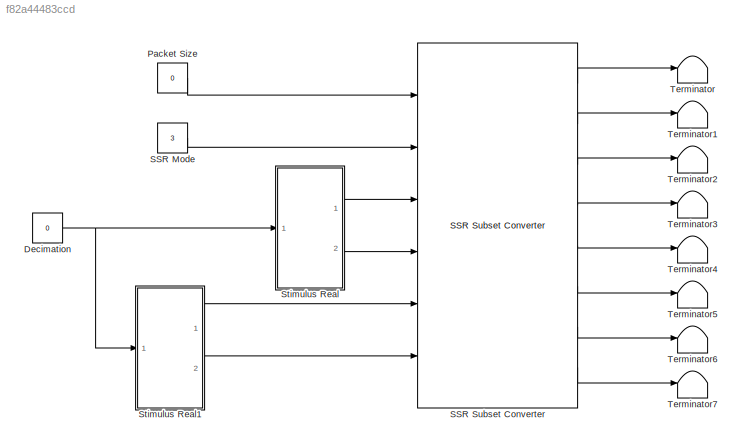
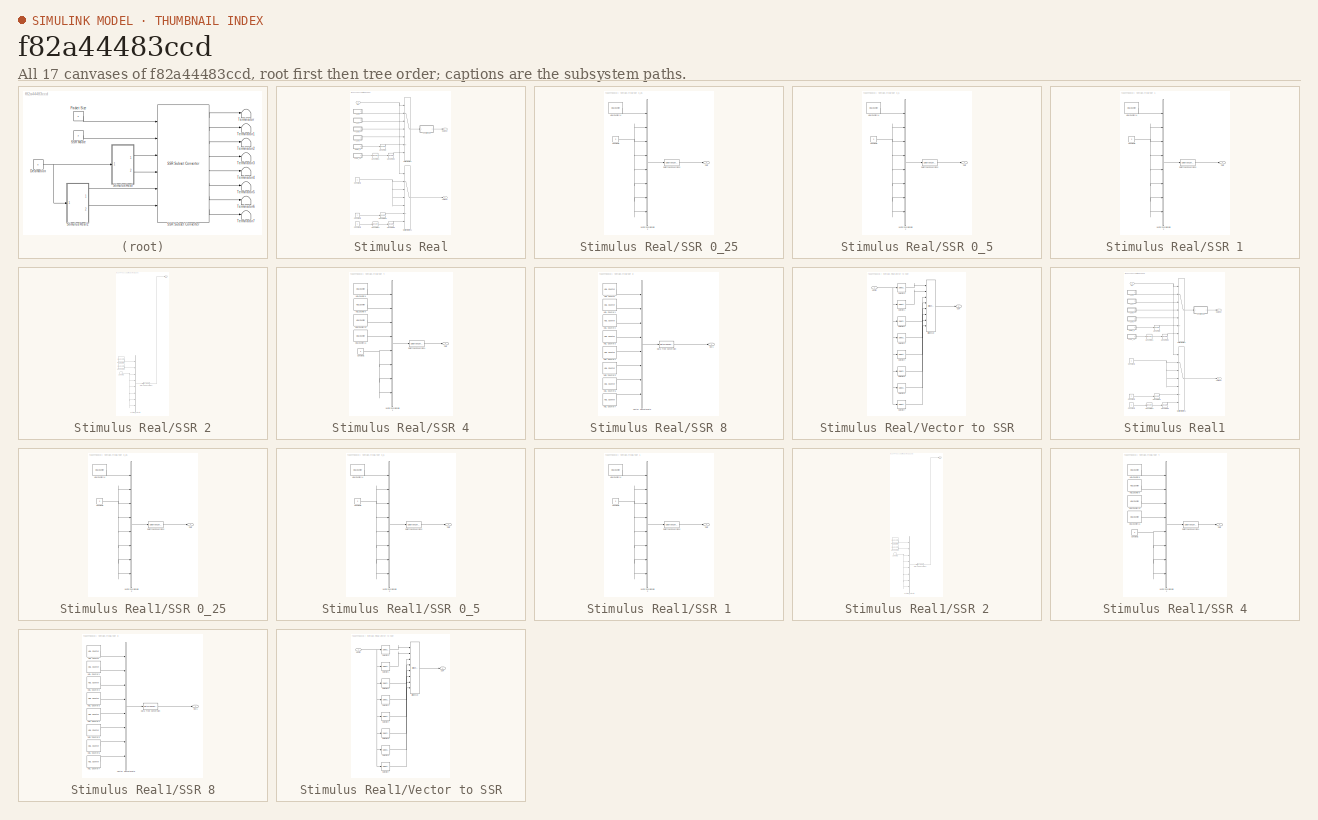
[diagram: thumbnail index - all 17 canvases of the model, root first then tree order]
MODEL slx_f82a44483ccd
KIND model
CONFIG AbsTol = auto
CONFIG EnableMultiTasking = off
CONFIG FixedStep = auto
CONFIG InitFcn = fs = 256e6;
CONFIG MaxStep = auto
CONFIG MinStep = auto
CONFIG RelTol = 1e-3
CONFIG SampleTimeConstraint = Unconstrained
CONFIG Solver = VariableStepAuto
CONFIG SolverName = VariableStepAuto
CONFIG StartTime = 0.0
CONFIG StopTime = (8192*4)/256e6
BLOCK [Constant] Decimation
  OutDataTypeStr = uint32
  SampleTime = -1
  Value = 0
BLOCK [Constant] Packet Size
  OutDataTypeStr = uint32
  SampleTime = -1
  Value = 0
BLOCK [Constant] SSR Mode
  OutDataTypeStr = uint32
  SampleTime = -1
  Value = 3
BLOCK [Reference] SSR Subset Converter  REF=slib_spectrum_analyser/SSR Subset Converter  (lib defined in slx_9446f48c21c4, slx_d429541b2c0d)
  Ports = [6, 8]
  SourceBlock = slib_spectrum_analyser/SSR Subset Converter
  SourceType = SubSystem
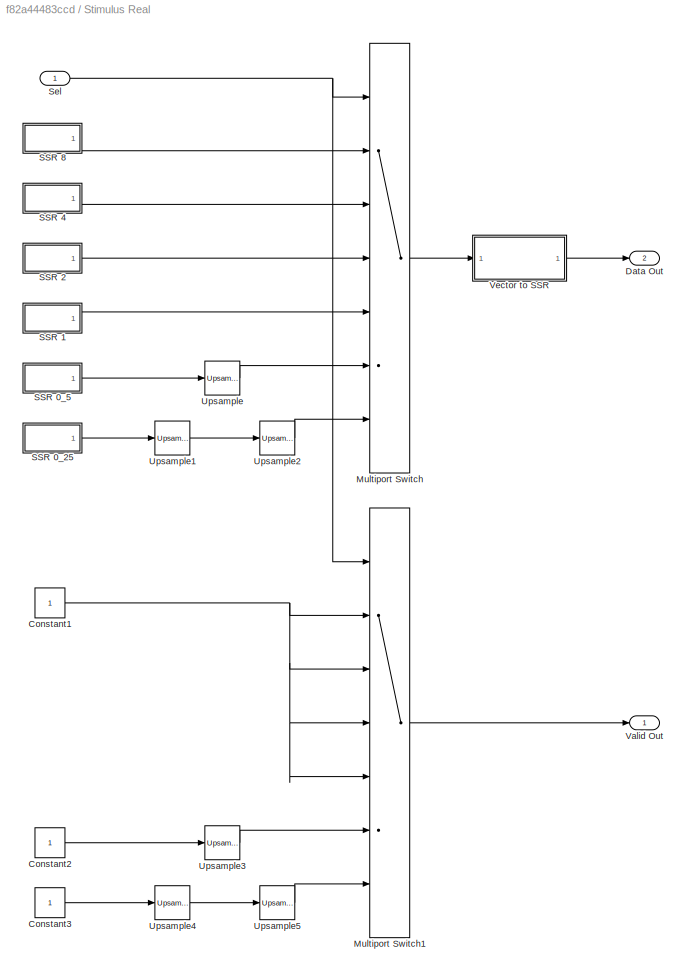
BLOCK [SubSystem] Stimulus Real
  Ports = [1, 2]
  RequestExecContextInheritance = off
BLOCK [Constant] Stimulus Real/Constant1
  OutDataTypeStr = boolean
  SampleTime = 1/fs
BLOCK [Constant] Stimulus Real/Constant2
  OutDataTypeStr = boolean
  SampleTime = 1/(fs/2)
BLOCK [Constant] Stimulus Real/Constant3
  OutDataTypeStr = boolean
  SampleTime = 1/(fs/4)
BLOCK [Outport] Stimulus Real/Data Out
  Port = 2
BLOCK [MultiPortSwitch] Stimulus Real/Multiport Switch
  DataPortOrder = Zero-based contiguous
  InputSameDT = off
  Inputs = 6
  Ports = [7, 1]
  SaturateOnIntegerOverflow = off
  zeroidx = on
BLOCK [MultiPortSwitch] Stimulus Real/Multiport Switch1
  DataPortOrder = Zero-based contiguous
  InputSameDT = off
  Inputs = 6
  Ports = [7, 1]
  SaturateOnIntegerOverflow = off
  zeroidx = on
BLOCK [SubSystem] Stimulus Real/SSR 0_25
  Ports = [0, 1]
  RequestExecContextInheritance = off
BLOCK [Constant] Stimulus Real/SSR 0_25/Constant2
  OutDataTypeStr = fixdt(0,12,0)
  SampleTime = -1
  Value = 0
BLOCK [DataTypeConversion] Stimulus Real/SSR 0_25/Data Type Conversion2
  OutDataTypeStr = fixdt(0,16,0)
  RndMeth = Floor
  SaturateOnIntegerOverflow = off
BLOCK [Reference] Stimulus Real/SSR 0_25/HDL Counter14  REF=hdlsllib/Sources/HDL Counter
  Ports = [0, 1]
  SourceBlock = hdlsllib/Sources/HDL Counter
  SourceProductBaseCode = SL
  SourceType = HDL Counter
BLOCK [Outport] Stimulus Real/SSR 0_25/Out1
BLOCK [Concatenate] Stimulus Real/SSR 0_25/Vector Concatenate2
  NumInputs = 8
  Ports = [8, 1]
BLOCK [SubSystem] Stimulus Real/SSR 0_5
  Ports = [0, 1]
  RequestExecContextInheritance = off
BLOCK [Constant] Stimulus Real/SSR 0_5/Constant2
  OutDataTypeStr = fixdt(0,12,0)
  SampleTime = -1
  Value = 0
BLOCK [DataTypeConversion] Stimulus Real/SSR 0_5/Data Type Conversion2
  OutDataTypeStr = fixdt(0,16,0)
  RndMeth = Floor
  SaturateOnIntegerOverflow = off
BLOCK [Reference] Stimulus Real/SSR 0_5/HDL Counter14  REF=hdlsllib/Sources/HDL Counter
  Ports = [0, 1]
  SourceBlock = hdlsllib/Sources/HDL Counter
  SourceProductBaseCode = SL
  SourceType = HDL Counter
BLOCK [Outport] Stimulus Real/SSR 0_5/Out1
BLOCK [Concatenate] Stimulus Real/SSR 0_5/Vector Concatenate2
  NumInputs = 8
  Ports = [8, 1]
BLOCK [SubSystem] Stimulus Real/SSR 1
  Ports = [0, 1]
  RequestExecContextInheritance = off
BLOCK [Constant] Stimulus Real/SSR 1/Constant2
  OutDataTypeStr = fixdt(0,12,0)
  SampleTime = -1
  Value = 0
BLOCK [DataTypeConversion] Stimulus Real/SSR 1/Data Type Conversion2
  OutDataTypeStr = fixdt(0,16,0)
  RndMeth = Floor
  SaturateOnIntegerOverflow = off
BLOCK [Reference] Stimulus Real/SSR 1/HDL Counter14  REF=hdlsllib/Sources/HDL Counter
  Ports = [0, 1]
  SourceBlock = hdlsllib/Sources/HDL Counter
  SourceProductBaseCode = SL
  SourceType = HDL Counter
BLOCK [Outport] Stimulus Real/SSR 1/Out1
BLOCK [Concatenate] Stimulus Real/SSR 1/Vector Concatenate2
  NumInputs = 8
  Ports = [8, 1]
BLOCK [SubSystem] Stimulus Real/SSR 2
  Ports = [0, 1]
  RequestExecContextInheritance = off
BLOCK [Constant] Stimulus Real/SSR 2/Constant2
  OutDataTypeStr = fixdt(0,12,0)
  SampleTime = -1
  Value = 0
BLOCK [DataTypeConversion] Stimulus Real/SSR 2/Data Type Conversion2
  OutDataTypeStr = fixdt(0,16,0)
  RndMeth = Floor
  SaturateOnIntegerOverflow = off
BLOCK [Reference] Stimulus Real/SSR 2/HDL Counter14  REF=hdlsllib/Sources/HDL Counter
  Ports = [0, 1]
  SourceBlock = hdlsllib/Sources/HDL Counter
  SourceProductBaseCode = SL
  SourceType = HDL Counter
BLOCK [Reference] Stimulus Real/SSR 2/HDL Counter15  REF=hdlsllib/Sources/HDL Counter
  Ports = [0, 1]
  SourceBlock = hdlsllib/Sources/HDL Counter
  SourceProductBaseCode = SL
  SourceType = HDL Counter
BLOCK [Outport] Stimulus Real/SSR 2/Out1
BLOCK [Concatenate] Stimulus Real/SSR 2/Vector Concatenate2
  NumInputs = 8
  Ports = [8, 1]
BLOCK [SubSystem] Stimulus Real/SSR 4
  Ports = [0, 1]
  RequestExecContextInheritance = off
BLOCK [Constant] Stimulus Real/SSR 4/Constant1
  OutDataTypeStr = fixdt(0,12,0)
  SampleTime = -1
  Value = 0
BLOCK [DataTypeConversion] Stimulus Real/SSR 4/Data Type Conversion1
  OutDataTypeStr = fixdt(0,16,0)
  RndMeth = Floor
  SaturateOnIntegerOverflow = off
BLOCK [Reference] Stimulus Real/SSR 4/HDL Counter10  REF=hdlsllib/Sources/HDL Counter
  Ports = [0, 1]
  SourceBlock = hdlsllib/Sources/HDL Counter
  SourceProductBaseCode = SL
  SourceType = HDL Counter
BLOCK [Reference] Stimulus Real/SSR 4/HDL Counter11  REF=hdlsllib/Sources/HDL Counter
  Ports = [0, 1]
  SourceBlock = hdlsllib/Sources/HDL Counter
  SourceProductBaseCode = SL
  SourceType = HDL Counter
BLOCK [Reference] Stimulus Real/SSR 4/HDL Counter8  REF=hdlsllib/Sources/HDL Counter
  Ports = [0, 1]
  SourceBlock = hdlsllib/Sources/HDL Counter
  SourceProductBaseCode = SL
  SourceType = HDL Counter
BLOCK [Reference] Stimulus Real/SSR 4/HDL Counter9  REF=hdlsllib/Sources/HDL Counter
  Ports = [0, 1]
  SourceBlock = hdlsllib/Sources/HDL Counter
  SourceProductBaseCode = SL
  SourceType = HDL Counter
BLOCK [Outport] Stimulus Real/SSR 4/Out1
BLOCK [Concatenate] Stimulus Real/SSR 4/Vector Concatenate1
  NumInputs = 8
  Ports = [8, 1]
BLOCK [SubSystem] Stimulus Real/SSR 8
  Ports = [0, 1]
  RequestExecContextInheritance = off
BLOCK [DataTypeConversion] Stimulus Real/SSR 8/Data Type Conversion
  OutDataTypeStr = fixdt(0,16,0)
  RndMeth = Floor
  SaturateOnIntegerOverflow = off
BLOCK [Reference] Stimulus Real/SSR 8/HDL Counter  REF=hdlsllib/Sources/HDL Counter
  Ports = [0, 1]
  SourceBlock = hdlsllib/Sources/HDL Counter
  SourceProductBaseCode = SL
  SourceType = HDL Counter
BLOCK [Reference] Stimulus Real/SSR 8/HDL Counter1  REF=hdlsllib/Sources/HDL Counter
  Ports = [0, 1]
  SourceBlock = hdlsllib/Sources/HDL Counter
  SourceProductBaseCode = SL
  SourceType = HDL Counter
BLOCK [Reference] Stimulus Real/SSR 8/HDL Counter2  REF=hdlsllib/Sources/HDL Counter
  Ports = [0, 1]
  SourceBlock = hdlsllib/Sources/HDL Counter
  SourceProductBaseCode = SL
  SourceType = HDL Counter
BLOCK [Reference] Stimulus Real/SSR 8/HDL Counter3  REF=hdlsllib/Sources/HDL Counter
  Ports = [0, 1]
  SourceBlock = hdlsllib/Sources/HDL Counter
  SourceProductBaseCode = SL
  SourceType = HDL Counter
BLOCK [Reference] Stimulus Real/SSR 8/HDL Counter4  REF=hdlsllib/Sources/HDL Counter
  Ports = [0, 1]
  SourceBlock = hdlsllib/Sources/HDL Counter
  SourceProductBaseCode = SL
  SourceType = HDL Counter
BLOCK [Reference] Stimulus Real/SSR 8/HDL Counter5  REF=hdlsllib/Sources/HDL Counter
  Ports = [0, 1]
  SourceBlock = hdlsllib/Sources/HDL Counter
  SourceProductBaseCode = SL
  SourceType = HDL Counter
BLOCK [Reference] Stimulus Real/SSR 8/HDL Counter6  REF=hdlsllib/Sources/HDL Counter
  Ports = [0, 1]
  SourceBlock = hdlsllib/Sources/HDL Counter
  SourceProductBaseCode = SL
  SourceType = HDL Counter
BLOCK [Reference] Stimulus Real/SSR 8/HDL Counter7  REF=hdlsllib/Sources/HDL Counter
  Ports = [0, 1]
  SourceBlock = hdlsllib/Sources/HDL Counter
  SourceProductBaseCode = SL
  SourceType = HDL Counter
BLOCK [Outport] Stimulus Real/SSR 8/Out1
BLOCK [Concatenate] Stimulus Real/SSR 8/Vector Concatenate
  NumInputs = 8
  Ports = [8, 1]
BLOCK [Inport] Stimulus Real/Sel
BLOCK [Reference] Stimulus Real/Upsample  REF=dspsigops/Upsample
  Ports = [1, 1]
  SourceBlock = dspsigops/Upsample
  SourceProductBaseCode = DS
  SourceType = Upsample
  UserDataPersistent = on
BLOCK [Reference] Stimulus Real/Upsample1  REF=dspsigops/Upsample
  Ports = [1, 1]
  SourceBlock = dspsigops/Upsample
  SourceProductBaseCode = DS
  SourceType = Upsample
  UserDataPersistent = on
BLOCK [Reference] Stimulus Real/Upsample2  REF=dspsigops/Upsample
  Ports = [1, 1]
  SourceBlock = dspsigops/Upsample
  SourceProductBaseCode = DS
  SourceType = Upsample
  UserDataPersistent = on
BLOCK [Reference] Stimulus Real/Upsample3  REF=dspsigops/Upsample
  Ports = [1, 1]
  SourceBlock = dspsigops/Upsample
  SourceProductBaseCode = DS
  SourceType = Upsample
  UserDataPersistent = on
BLOCK [Reference] Stimulus Real/Upsample4  REF=dspsigops/Upsample
  Ports = [1, 1]
  SourceBlock = dspsigops/Upsample
  SourceProductBaseCode = DS
  SourceType = Upsample
  UserDataPersistent = on
BLOCK [Reference] Stimulus Real/Upsample5  REF=dspsigops/Upsample
  Ports = [1, 1]
  SourceBlock = dspsigops/Upsample
  SourceProductBaseCode = DS
  SourceType = Upsample
  UserDataPersistent = on
BLOCK [Outport] Stimulus Real/Valid Out
BLOCK [SubSystem] Stimulus Real/Vector to SSR
  Ports = [1, 1]
  RequestExecContextInheritance = off
BLOCK [Reference] Stimulus Real/Vector to SSR/Bit Concat  REF=hdlsllib/Logic and Bit
Operations/Bit Concat
  Ports = [8, 1]
  SourceBlock = hdlsllib/Logic and Bit\nOperations/Bit Concat
  SourceProductBaseCode = SL
  SourceType = Bit Concat
BLOCK [Outport] Stimulus Real/Vector to SSR/SSR
BLOCK [Selector] Stimulus Real/Vector to SSR/Selector0
  IndexOptions = Index vector (dialog)
  Indices = 8
  InputPortWidth = 8
  OutputSizes = 1
  Ports = [1, 1]
BLOCK [Selector] Stimulus Real/Vector to SSR/Selector1
  IndexOptions = Index vector (dialog)
  Indices = 7
  InputPortWidth = 8
  OutputSizes = 1
  Ports = [1, 1]
BLOCK [Selector] Stimulus Real/Vector to SSR/Selector2
  IndexOptions = Index vector (dialog)
  Indices = 6
  InputPortWidth = 8
  OutputSizes = 1
  Ports = [1, 1]
BLOCK [Selector] Stimulus Real/Vector to SSR/Selector3
  IndexOptions = Index vector (dialog)
  Indices = 5
  InputPortWidth = 8
  OutputSizes = 1
  Ports = [1, 1]
BLOCK [Selector] Stimulus Real/Vector to SSR/Selector4
  IndexOptions = Index vector (dialog)
  Indices = 4
  InputPortWidth = 8
  OutputSizes = 1
  Ports = [1, 1]
BLOCK [Selector] Stimulus Real/Vector to SSR/Selector5
  IndexOptions = Index vector (dialog)
  Indices = 3
  InputPortWidth = 8
  OutputSizes = 1
  Ports = [1, 1]
BLOCK [Selector] Stimulus Real/Vector to SSR/Selector6
  IndexOptions = Index vector (dialog)
  Indices = 2
  InputPortWidth = 8
  OutputSizes = 1
  Ports = [1, 1]
BLOCK [Selector] Stimulus Real/Vector to SSR/Selector7
  IndexOptions = Index vector (dialog)
  Indices = 1
  InputPortWidth = 8
  OutputSizes = 1
  Ports = [1, 1]
BLOCK [Inport] Stimulus Real/Vector to SSR/Vector
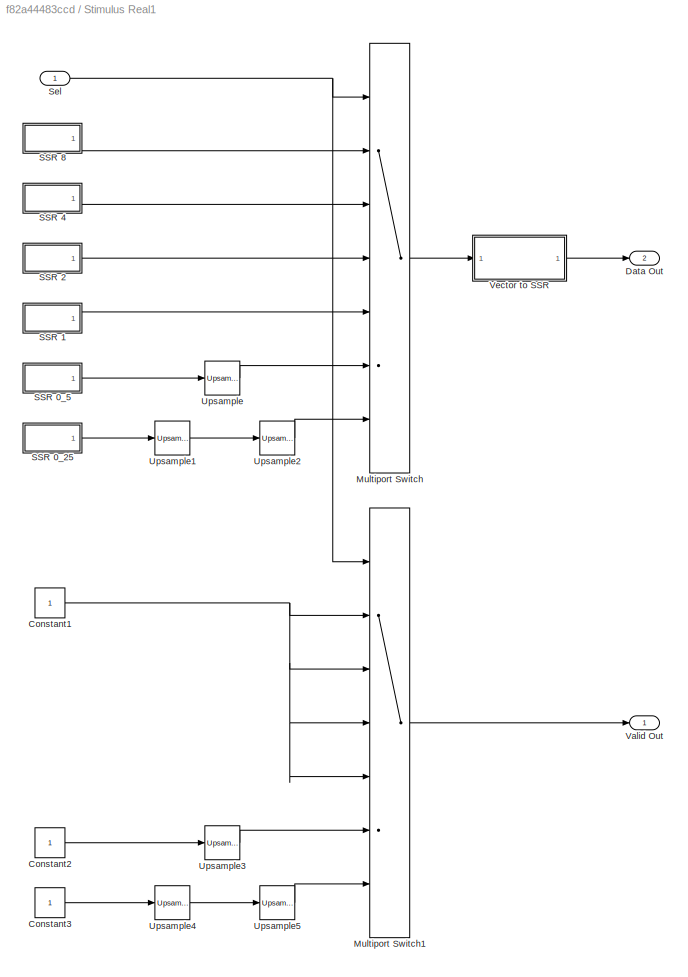
BLOCK [SubSystem] Stimulus Real1
  Ports = [1, 2]
  RequestExecContextInheritance = off
BLOCK [Constant] Stimulus Real1/Constant1
  OutDataTypeStr = boolean
  SampleTime = 1/fs
BLOCK [Constant] Stimulus Real1/Constant2
  OutDataTypeStr = boolean
  SampleTime = 1/(fs/2)
BLOCK [Constant] Stimulus Real1/Constant3
  OutDataTypeStr = boolean
  SampleTime = 1/(fs/4)
BLOCK [Outport] Stimulus Real1/Data Out
  Port = 2
BLOCK [MultiPortSwitch] Stimulus Real1/Multiport Switch
  DataPortOrder = Zero-based contiguous
  InputSameDT = off
  Inputs = 6
  Ports = [7, 1]
  SaturateOnIntegerOverflow = off
  zeroidx = on
BLOCK [MultiPortSwitch] Stimulus Real1/Multiport Switch1
  DataPortOrder = Zero-based contiguous
  InputSameDT = off
  Inputs = 6
  Ports = [7, 1]
  SaturateOnIntegerOverflow = off
  zeroidx = on
BLOCK [SubSystem] Stimulus Real1/SSR 0_25
  Ports = [0, 1]
  RequestExecContextInheritance = off
BLOCK [Constant] Stimulus Real1/SSR 0_25/Constant2
  OutDataTypeStr = fixdt(0,12,0)
  SampleTime = -1
  Value = 0
BLOCK [DataTypeConversion] Stimulus Real1/SSR 0_25/Data Type Conversion2
  OutDataTypeStr = fixdt(0,16,0)
  RndMeth = Floor
  SaturateOnIntegerOverflow = off
BLOCK [Reference] Stimulus Real1/SSR 0_25/HDL Counter14  REF=hdlsllib/Sources/HDL Counter
  Ports = [0, 1]
  SourceBlock = hdlsllib/Sources/HDL Counter
  SourceProductBaseCode = SL
  SourceType = HDL Counter
BLOCK [Outport] Stimulus Real1/SSR 0_25/Out1
BLOCK [Concatenate] Stimulus Real1/SSR 0_25/Vector Concatenate2
  NumInputs = 8
  Ports = [8, 1]
BLOCK [SubSystem] Stimulus Real1/SSR 0_5
  Ports = [0, 1]
  RequestExecContextInheritance = off
BLOCK [Constant] Stimulus Real1/SSR 0_5/Constant2
  OutDataTypeStr = fixdt(0,12,0)
  SampleTime = -1
  Value = 0
BLOCK [DataTypeConversion] Stimulus Real1/SSR 0_5/Data Type Conversion2
  OutDataTypeStr = fixdt(0,16,0)
  RndMeth = Floor
  SaturateOnIntegerOverflow = off
BLOCK [Reference] Stimulus Real1/SSR 0_5/HDL Counter14  REF=hdlsllib/Sources/HDL Counter
  Ports = [0, 1]
  SourceBlock = hdlsllib/Sources/HDL Counter
  SourceProductBaseCode = SL
  SourceType = HDL Counter
BLOCK [Outport] Stimulus Real1/SSR 0_5/Out1
BLOCK [Concatenate] Stimulus Real1/SSR 0_5/Vector Concatenate2
  NumInputs = 8
  Ports = [8, 1]
BLOCK [SubSystem] Stimulus Real1/SSR 1
  Ports = [0, 1]
  RequestExecContextInheritance = off
BLOCK [Constant] Stimulus Real1/SSR 1/Constant2
  OutDataTypeStr = fixdt(0,12,0)
  SampleTime = -1
  Value = 0
BLOCK [DataTypeConversion] Stimulus Real1/SSR 1/Data Type Conversion2
  OutDataTypeStr = fixdt(0,16,0)
  RndMeth = Floor
  SaturateOnIntegerOverflow = off
BLOCK [Reference] Stimulus Real1/SSR 1/HDL Counter14  REF=hdlsllib/Sources/HDL Counter
  Ports = [0, 1]
  SourceBlock = hdlsllib/Sources/HDL Counter
  SourceProductBaseCode = SL
  SourceType = HDL Counter
BLOCK [Outport] Stimulus Real1/SSR 1/Out1
BLOCK [Concatenate] Stimulus Real1/SSR 1/Vector Concatenate2
  NumInputs = 8
  Ports = [8, 1]
BLOCK [SubSystem] Stimulus Real1/SSR 2
  Ports = [0, 1]
  RequestExecContextInheritance = off
BLOCK [Constant] Stimulus Real1/SSR 2/Constant2
  OutDataTypeStr = fixdt(0,12,0)
  SampleTime = -1
  Value = 0
BLOCK [DataTypeConversion] Stimulus Real1/SSR 2/Data Type Conversion2
  OutDataTypeStr = fixdt(0,16,0)
  RndMeth = Floor
  SaturateOnIntegerOverflow = off
BLOCK [Reference] Stimulus Real1/SSR 2/HDL Counter14  REF=hdlsllib/Sources/HDL Counter
  Ports = [0, 1]
  SourceBlock = hdlsllib/Sources/HDL Counter
  SourceProductBaseCode = SL
  SourceType = HDL Counter
BLOCK [Reference] Stimulus Real1/SSR 2/HDL Counter15  REF=hdlsllib/Sources/HDL Counter
  Ports = [0, 1]
  SourceBlock = hdlsllib/Sources/HDL Counter
  SourceProductBaseCode = SL
  SourceType = HDL Counter
BLOCK [Outport] Stimulus Real1/SSR 2/Out1
BLOCK [Concatenate] Stimulus Real1/SSR 2/Vector Concatenate2
  NumInputs = 8
  Ports = [8, 1]
BLOCK [SubSystem] Stimulus Real1/SSR 4
  Ports = [0, 1]
  RequestExecContextInheritance = off
BLOCK [Constant] Stimulus Real1/SSR 4/Constant1
  OutDataTypeStr = fixdt(0,12,0)
  SampleTime = -1
  Value = 0
BLOCK [DataTypeConversion] Stimulus Real1/SSR 4/Data Type Conversion1
  OutDataTypeStr = fixdt(0,16,0)
  RndMeth = Floor
  SaturateOnIntegerOverflow = off
BLOCK [Reference] Stimulus Real1/SSR 4/HDL Counter10  REF=hdlsllib/Sources/HDL Counter
  Ports = [0, 1]
  SourceBlock = hdlsllib/Sources/HDL Counter
  SourceProductBaseCode = SL
  SourceType = HDL Counter
BLOCK [Reference] Stimulus Real1/SSR 4/HDL Counter11  REF=hdlsllib/Sources/HDL Counter
  Ports = [0, 1]
  SourceBlock = hdlsllib/Sources/HDL Counter
  SourceProductBaseCode = SL
  SourceType = HDL Counter
BLOCK [Reference] Stimulus Real1/SSR 4/HDL Counter8  REF=hdlsllib/Sources/HDL Counter
  Ports = [0, 1]
  SourceBlock = hdlsllib/Sources/HDL Counter
  SourceProductBaseCode = SL
  SourceType = HDL Counter
BLOCK [Reference] Stimulus Real1/SSR 4/HDL Counter9  REF=hdlsllib/Sources/HDL Counter
  Ports = [0, 1]
  SourceBlock = hdlsllib/Sources/HDL Counter
  SourceProductBaseCode = SL
  SourceType = HDL Counter
BLOCK [Outport] Stimulus Real1/SSR 4/Out1
BLOCK [Concatenate] Stimulus Real1/SSR 4/Vector Concatenate1
  NumInputs = 8
  Ports = [8, 1]
BLOCK [SubSystem] Stimulus Real1/SSR 8
  Ports = [0, 1]
  RequestExecContextInheritance = off
BLOCK [DataTypeConversion] Stimulus Real1/SSR 8/Data Type Conversion
  OutDataTypeStr = fixdt(0,16,0)
  RndMeth = Floor
  SaturateOnIntegerOverflow = off
BLOCK [Reference] Stimulus Real1/SSR 8/HDL Counter  REF=hdlsllib/Sources/HDL Counter
  Ports = [0, 1]
  SourceBlock = hdlsllib/Sources/HDL Counter
  SourceProductBaseCode = SL
  SourceType = HDL Counter
BLOCK [Reference] Stimulus Real1/SSR 8/HDL Counter1  REF=hdlsllib/Sources/HDL Counter
  Ports = [0, 1]
  SourceBlock = hdlsllib/Sources/HDL Counter
  SourceProductBaseCode = SL
  SourceType = HDL Counter
BLOCK [Reference] Stimulus Real1/SSR 8/HDL Counter2  REF=hdlsllib/Sources/HDL Counter
  Ports = [0, 1]
  SourceBlock = hdlsllib/Sources/HDL Counter
  SourceProductBaseCode = SL
  SourceType = HDL Counter
BLOCK [Reference] Stimulus Real1/SSR 8/HDL Counter3  REF=hdlsllib/Sources/HDL Counter
  Ports = [0, 1]
  SourceBlock = hdlsllib/Sources/HDL Counter
  SourceProductBaseCode = SL
  SourceType = HDL Counter
BLOCK [Reference] Stimulus Real1/SSR 8/HDL Counter4  REF=hdlsllib/Sources/HDL Counter
  Ports = [0, 1]
  SourceBlock = hdlsllib/Sources/HDL Counter
  SourceProductBaseCode = SL
  SourceType = HDL Counter
BLOCK [Reference] Stimulus Real1/SSR 8/HDL Counter5  REF=hdlsllib/Sources/HDL Counter
  Ports = [0, 1]
  SourceBlock = hdlsllib/Sources/HDL Counter
  SourceProductBaseCode = SL
  SourceType = HDL Counter
BLOCK [Reference] Stimulus Real1/SSR 8/HDL Counter6  REF=hdlsllib/Sources/HDL Counter
  Ports = [0, 1]
  SourceBlock = hdlsllib/Sources/HDL Counter
  SourceProductBaseCode = SL
  SourceType = HDL Counter
BLOCK [Reference] Stimulus Real1/SSR 8/HDL Counter7  REF=hdlsllib/Sources/HDL Counter
  Ports = [0, 1]
  SourceBlock = hdlsllib/Sources/HDL Counter
  SourceProductBaseCode = SL
  SourceType = HDL Counter
BLOCK [Outport] Stimulus Real1/SSR 8/Out1
BLOCK [Concatenate] Stimulus Real1/SSR 8/Vector Concatenate
  NumInputs = 8
  Ports = [8, 1]
BLOCK [Inport] Stimulus Real1/Sel
BLOCK [Reference] Stimulus Real1/Upsample  REF=dspsigops/Upsample
  Ports = [1, 1]
  SourceBlock = dspsigops/Upsample
  SourceProductBaseCode = DS
  SourceType = Upsample
  UserDataPersistent = on
BLOCK [Reference] Stimulus Real1/Upsample1  REF=dspsigops/Upsample
  Ports = [1, 1]
  SourceBlock = dspsigops/Upsample
  SourceProductBaseCode = DS
  SourceType = Upsample
  UserDataPersistent = on
BLOCK [Reference] Stimulus Real1/Upsample2  REF=dspsigops/Upsample
  Ports = [1, 1]
  SourceBlock = dspsigops/Upsample
  SourceProductBaseCode = DS
  SourceType = Upsample
  UserDataPersistent = on
BLOCK [Reference] Stimulus Real1/Upsample3  REF=dspsigops/Upsample
  Ports = [1, 1]
  SourceBlock = dspsigops/Upsample
  SourceProductBaseCode = DS
  SourceType = Upsample
  UserDataPersistent = on
BLOCK [Reference] Stimulus Real1/Upsample4  REF=dspsigops/Upsample
  Ports = [1, 1]
  SourceBlock = dspsigops/Upsample
  SourceProductBaseCode = DS
  SourceType = Upsample
  UserDataPersistent = on
BLOCK [Reference] Stimulus Real1/Upsample5  REF=dspsigops/Upsample
  Ports = [1, 1]
  SourceBlock = dspsigops/Upsample
  SourceProductBaseCode = DS
  SourceType = Upsample
  UserDataPersistent = on
BLOCK [Outport] Stimulus Real1/Valid Out
BLOCK [SubSystem] Stimulus Real1/Vector to SSR
  Ports = [1, 1]
  RequestExecContextInheritance = off
BLOCK [Reference] Stimulus Real1/Vector to SSR/Bit Concat  REF=hdlsllib/Logic and Bit
Operations/Bit Concat
  Ports = [8, 1]
  SourceBlock = hdlsllib/Logic and Bit\nOperations/Bit Concat
  SourceProductBaseCode = SL
  SourceType = Bit Concat
BLOCK [Outport] Stimulus Real1/Vector to SSR/SSR
BLOCK [Selector] Stimulus Real1/Vector to SSR/Selector0
  IndexOptions = Index vector (dialog)
  Indices = 8
  InputPortWidth = 8
  OutputSizes = 1
  Ports = [1, 1]
BLOCK [Selector] Stimulus Real1/Vector to SSR/Selector1
  IndexOptions = Index vector (dialog)
  Indices = 7
  InputPortWidth = 8
  OutputSizes = 1
  Ports = [1, 1]
BLOCK [Selector] Stimulus Real1/Vector to SSR/Selector2
  IndexOptions = Index vector (dialog)
  Indices = 6
  InputPortWidth = 8
  OutputSizes = 1
  Ports = [1, 1]
BLOCK [Selector] Stimulus Real1/Vector to SSR/Selector3
  IndexOptions = Index vector (dialog)
  Indices = 5
  InputPortWidth = 8
  OutputSizes = 1
  Ports = [1, 1]
BLOCK [Selector] Stimulus Real1/Vector to SSR/Selector4
  IndexOptions = Index vector (dialog)
  Indices = 4
  InputPortWidth = 8
  OutputSizes = 1
  Ports = [1, 1]
BLOCK [Selector] Stimulus Real1/Vector to SSR/Selector5
  IndexOptions = Index vector (dialog)
  Indices = 3
  InputPortWidth = 8
  OutputSizes = 1
  Ports = [1, 1]
BLOCK [Selector] Stimulus Real1/Vector to SSR/Selector6
  IndexOptions = Index vector (dialog)
  Indices = 2
  InputPortWidth = 8
  OutputSizes = 1
  Ports = [1, 1]
BLOCK [Selector] Stimulus Real1/Vector to SSR/Selector7
  IndexOptions = Index vector (dialog)
  Indices = 1
  InputPortWidth = 8
  OutputSizes = 1
  Ports = [1, 1]
BLOCK [Inport] Stimulus Real1/Vector to SSR/Vector
BLOCK [Terminator] Terminator
BLOCK [Terminator] Terminator1
BLOCK [Terminator] Terminator2
BLOCK [Terminator] Terminator3
BLOCK [Terminator] Terminator4
BLOCK [Terminator] Terminator5
BLOCK [Terminator] Terminator6
BLOCK [Terminator] Terminator7
NET Decimation:1 -> Stimulus Real1:1, Stimulus Real:1
LINE Packet Size:1 -> SSR Subset Converter:1
LINE SSR Mode:1 -> SSR Subset Converter:2
LINE SSR Subset Converter:1 -> Terminator:1
LINE SSR Subset Converter:2 -> Terminator1:1
LINE SSR Subset Converter:3 -> Terminator2:1
LINE SSR Subset Converter:4 -> Terminator3:1
LINE SSR Subset Converter:5 -> Terminator4:1
LINE SSR Subset Converter:6 -> Terminator5:1
LINE SSR Subset Converter:7 -> Terminator6:1
LINE SSR Subset Converter:8 -> Terminator7:1
NET Stimulus Real/Constant1:1 -> Stimulus Real/Multiport Switch1:2, Stimulus Real/Multiport Switch1:3, Stimulus Real/Multiport Switch1:4, Stimulus Real/Multiport Switch1:5
LINE Stimulus Real/Constant2:1 -> Stimulus Real/Upsample3:1
LINE Stimulus Real/Constant3:1 -> Stimulus Real/Upsample4:1
LINE Stimulus Real/Multiport Switch1:1 -> Stimulus Real/Valid Out:1
LINE Stimulus Real/Multiport Switch:1 -> Stimulus Real/Vector to SSR:1
NET Stimulus Real/SSR 0_25/Constant2:1 -> Stimulus Real/SSR 0_25/Vector Concatenate2:2, Stimulus Real/SSR 0_25/Vector Concatenate2:3, Stimulus Real/SSR 0_25/Vector Concatenate2:4, Stimulus Real/SSR 0_25/Vector Concatenate2:5, Stimulus Real/SSR 0_25/Vector Concatenate2:6, Stimulus Real/SSR 0_25/Vector Concatenate2:7, Stimulus Real/SSR 0_25/Vector Concatenate2:8
LINE Stimulus Real/SSR 0_25/Data Type Conversion2:1 -> Stimulus Real/SSR 0_25/Out1:1
LINE Stimulus Real/SSR 0_25/HDL Counter14:1 -> Stimulus Real/SSR 0_25/Vector Concatenate2:1
LINE Stimulus Real/SSR 0_25/Vector Concatenate2:1 -> Stimulus Real/SSR 0_25/Data Type Conversion2:1
LINE Stimulus Real/SSR 0_25:1 -> Stimulus Real/Upsample1:1
NET Stimulus Real/SSR 0_5/Constant2:1 -> Stimulus Real/SSR 0_5/Vector Concatenate2:2, Stimulus Real/SSR 0_5/Vector Concatenate2:3, Stimulus Real/SSR 0_5/Vector Concatenate2:4, Stimulus Real/SSR 0_5/Vector Concatenate2:5, Stimulus Real/SSR 0_5/Vector Concatenate2:6, Stimulus Real/SSR 0_5/Vector Concatenate2:7, Stimulus Real/SSR 0_5/Vector Concatenate2:8
LINE Stimulus Real/SSR 0_5/Data Type Conversion2:1 -> Stimulus Real/SSR 0_5/Out1:1
LINE Stimulus Real/SSR 0_5/HDL Counter14:1 -> Stimulus Real/SSR 0_5/Vector Concatenate2:1
LINE Stimulus Real/SSR 0_5/Vector Concatenate2:1 -> Stimulus Real/SSR 0_5/Data Type Conversion2:1
LINE Stimulus Real/SSR 0_5:1 -> Stimulus Real/Upsample:1
NET Stimulus Real/SSR 1/Constant2:1 -> Stimulus Real/SSR 1/Vector Concatenate2:2, Stimulus Real/SSR 1/Vector Concatenate2:3, Stimulus Real/SSR 1/Vector Concatenate2:4, Stimulus Real/SSR 1/Vector Concatenate2:5, Stimulus Real/SSR 1/Vector Concatenate2:6, Stimulus Real/SSR 1/Vector Concatenate2:7, Stimulus Real/SSR 1/Vector Concatenate2:8
LINE Stimulus Real/SSR 1/Data Type Conversion2:1 -> Stimulus Real/SSR 1/Out1:1
LINE Stimulus Real/SSR 1/HDL Counter14:1 -> Stimulus Real/SSR 1/Vector Concatenate2:1
LINE Stimulus Real/SSR 1/Vector Concatenate2:1 -> Stimulus Real/SSR 1/Data Type Conversion2:1
LINE Stimulus Real/SSR 1:1 -> Stimulus Real/Multiport Switch:5
NET Stimulus Real/SSR 2/Constant2:1 -> Stimulus Real/SSR 2/Vector Concatenate2:3, Stimulus Real/SSR 2/Vector Concatenate2:4, Stimulus Real/SSR 2/Vector Concatenate2:5, Stimulus Real/SSR 2/Vector Concatenate2:6, Stimulus Real/SSR 2/Vector Concatenate2:7, Stimulus Real/SSR 2/Vector Concatenate2:8
LINE Stimulus Real/SSR 2/Data Type Conversion2:1 -> Stimulus Real/SSR 2/Out1:1
LINE Stimulus Real/SSR 2/HDL Counter14:1 -> Stimulus Real/SSR 2/Vector Concatenate2:1
LINE Stimulus Real/SSR 2/HDL Counter15:1 -> Stimulus Real/SSR 2/Vector Concatenate2:2
LINE Stimulus Real/SSR 2/Vector Concatenate2:1 -> Stimulus Real/SSR 2/Data Type Conversion2:1
LINE Stimulus Real/SSR 2:1 -> Stimulus Real/Multiport Switch:4
NET Stimulus Real/SSR 4/Constant1:1 -> Stimulus Real/SSR 4/Vector Concatenate1:5, Stimulus Real/SSR 4/Vector Concatenate1:6, Stimulus Real/SSR 4/Vector Concatenate1:7, Stimulus Real/SSR 4/Vector Concatenate1:8
LINE Stimulus Real/SSR 4/Data Type Conversion1:1 -> Stimulus Real/SSR 4/Out1:1
LINE Stimulus Real/SSR 4/HDL Counter10:1 -> Stimulus Real/SSR 4/Vector Concatenate1:3
LINE Stimulus Real/SSR 4/HDL Counter11:1 -> Stimulus Real/SSR 4/Vector Concatenate1:4
LINE Stimulus Real/SSR 4/HDL Counter8:1 -> Stimulus Real/SSR 4/Vector Concatenate1:1
LINE Stimulus Real/SSR 4/HDL Counter9:1 -> Stimulus Real/SSR 4/Vector Concatenate1:2
LINE Stimulus Real/SSR 4/Vector Concatenate1:1 -> Stimulus Real/SSR 4/Data Type Conversion1:1
LINE Stimulus Real/SSR 4:1 -> Stimulus Real/Multiport Switch:3
LINE Stimulus Real/SSR 8/Data Type Conversion:1 -> Stimulus Real/SSR 8/Out1:1
LINE Stimulus Real/SSR 8/HDL Counter1:1 -> Stimulus Real/SSR 8/Vector Concatenate:2
LINE Stimulus Real/SSR 8/HDL Counter2:1 -> Stimulus Real/SSR 8/Vector Concatenate:3
LINE Stimulus Real/SSR 8/HDL Counter3:1 -> Stimulus Real/SSR 8/Vector Concatenate:4
LINE Stimulus Real/SSR 8/HDL Counter4:1 -> Stimulus Real/SSR 8/Vector Concatenate:5
LINE Stimulus Real/SSR 8/HDL Counter5:1 -> Stimulus Real/SSR 8/Vector Concatenate:6
LINE Stimulus Real/SSR 8/HDL Counter6:1 -> Stimulus Real/SSR 8/Vector Concatenate:7
LINE Stimulus Real/SSR 8/HDL Counter7:1 -> Stimulus Real/SSR 8/Vector Concatenate:8
LINE Stimulus Real/SSR 8/HDL Counter:1 -> Stimulus Real/SSR 8/Vector Concatenate:1
LINE Stimulus Real/SSR 8/Vector Concatenate:1 -> Stimulus Real/SSR 8/Data Type Conversion:1
LINE Stimulus Real/SSR 8:1 -> Stimulus Real/Multiport Switch:2
NET Stimulus Real/Sel:1 -> Stimulus Real/Multiport Switch1:1, Stimulus Real/Multiport Switch:1
LINE Stimulus Real/Upsample1:1 -> Stimulus Real/Upsample2:1
LINE Stimulus Real/Upsample2:1 -> Stimulus Real/Multiport Switch:7
LINE Stimulus Real/Upsample3:1 -> Stimulus Real/Multiport Switch1:6
LINE Stimulus Real/Upsample4:1 -> Stimulus Real/Upsample5:1
LINE Stimulus Real/Upsample5:1 -> Stimulus Real/Multiport Switch1:7
LINE Stimulus Real/Upsample:1 -> Stimulus Real/Multiport Switch:6
LINE Stimulus Real/Vector to SSR/Bit Concat:1 -> Stimulus Real/Vector to SSR/SSR:1
LINE Stimulus Real/Vector to SSR/Selector0:1 -> Stimulus Real/Vector to SSR/Bit Concat:1
LINE Stimulus Real/Vector to SSR/Selector1:1 -> Stimulus Real/Vector to SSR/Bit Concat:2
LINE Stimulus Real/Vector to SSR/Selector2:1 -> Stimulus Real/Vector to SSR/Bit Concat:3
LINE Stimulus Real/Vector to SSR/Selector3:1 -> Stimulus Real/Vector to SSR/Bit Concat:4
LINE Stimulus Real/Vector to SSR/Selector4:1 -> Stimulus Real/Vector to SSR/Bit Concat:5
LINE Stimulus Real/Vector to SSR/Selector5:1 -> Stimulus Real/Vector to SSR/Bit Concat:6
LINE Stimulus Real/Vector to SSR/Selector6:1 -> Stimulus Real/Vector to SSR/Bit Concat:7
LINE Stimulus Real/Vector to SSR/Selector7:1 -> Stimulus Real/Vector to SSR/Bit Concat:8
NET Stimulus Real/Vector to SSR/Vector:1 -> Stimulus Real/Vector to SSR/Selector0:1, Stimulus Real/Vector to SSR/Selector1:1, Stimulus Real/Vector to SSR/Selector2:1, Stimulus Real/Vector to SSR/Selector3:1, Stimulus Real/Vector to SSR/Selector4:1, Stimulus Real/Vector to SSR/Selector5:1, Stimulus Real/Vector to SSR/Selector6:1, Stimulus Real/Vector to SSR/Selector7:1
LINE Stimulus Real/Vector to SSR:1 -> Stimulus Real/Data Out:1
NET Stimulus Real1/Constant1:1 -> Stimulus Real1/Multiport Switch1:2, Stimulus Real1/Multiport Switch1:3, Stimulus Real1/Multiport Switch1:4, Stimulus Real1/Multiport Switch1:5
LINE Stimulus Real1/Constant2:1 -> Stimulus Real1/Upsample3:1
LINE Stimulus Real1/Constant3:1 -> Stimulus Real1/Upsample4:1
LINE Stimulus Real1/Multiport Switch1:1 -> Stimulus Real1/Valid Out:1
LINE Stimulus Real1/Multiport Switch:1 -> Stimulus Real1/Vector to SSR:1
NET Stimulus Real1/SSR 0_25/Constant2:1 -> Stimulus Real1/SSR 0_25/Vector Concatenate2:2, Stimulus Real1/SSR 0_25/Vector Concatenate2:3, Stimulus Real1/SSR 0_25/Vector Concatenate2:4, Stimulus Real1/SSR 0_25/Vector Concatenate2:5, Stimulus Real1/SSR 0_25/Vector Concatenate2:6, Stimulus Real1/SSR 0_25/Vector Concatenate2:7, Stimulus Real1/SSR 0_25/Vector Concatenate2:8
LINE Stimulus Real1/SSR 0_25/Data Type Conversion2:1 -> Stimulus Real1/SSR 0_25/Out1:1
LINE Stimulus Real1/SSR 0_25/HDL Counter14:1 -> Stimulus Real1/SSR 0_25/Vector Concatenate2:1
LINE Stimulus Real1/SSR 0_25/Vector Concatenate2:1 -> Stimulus Real1/SSR 0_25/Data Type Conversion2:1
LINE Stimulus Real1/SSR 0_25:1 -> Stimulus Real1/Upsample1:1
NET Stimulus Real1/SSR 0_5/Constant2:1 -> Stimulus Real1/SSR 0_5/Vector Concatenate2:2, Stimulus Real1/SSR 0_5/Vector Concatenate2:3, Stimulus Real1/SSR 0_5/Vector Concatenate2:4, Stimulus Real1/SSR 0_5/Vector Concatenate2:5, Stimulus Real1/SSR 0_5/Vector Concatenate2:6, Stimulus Real1/SSR 0_5/Vector Concatenate2:7, Stimulus Real1/SSR 0_5/Vector Concatenate2:8
LINE Stimulus Real1/SSR 0_5/Data Type Conversion2:1 -> Stimulus Real1/SSR 0_5/Out1:1
LINE Stimulus Real1/SSR 0_5/HDL Counter14:1 -> Stimulus Real1/SSR 0_5/Vector Concatenate2:1
LINE Stimulus Real1/SSR 0_5/Vector Concatenate2:1 -> Stimulus Real1/SSR 0_5/Data Type Conversion2:1
LINE Stimulus Real1/SSR 0_5:1 -> Stimulus Real1/Upsample:1
NET Stimulus Real1/SSR 1/Constant2:1 -> Stimulus Real1/SSR 1/Vector Concatenate2:2, Stimulus Real1/SSR 1/Vector Concatenate2:3, Stimulus Real1/SSR 1/Vector Concatenate2:4, Stimulus Real1/SSR 1/Vector Concatenate2:5, Stimulus Real1/SSR 1/Vector Concatenate2:6, Stimulus Real1/SSR 1/Vector Concatenate2:7, Stimulus Real1/SSR 1/Vector Concatenate2:8
LINE Stimulus Real1/SSR 1/Data Type Conversion2:1 -> Stimulus Real1/SSR 1/Out1:1
LINE Stimulus Real1/SSR 1/HDL Counter14:1 -> Stimulus Real1/SSR 1/Vector Concatenate2:1
LINE Stimulus Real1/SSR 1/Vector Concatenate2:1 -> Stimulus Real1/SSR 1/Data Type Conversion2:1
LINE Stimulus Real1/SSR 1:1 -> Stimulus Real1/Multiport Switch:5
NET Stimulus Real1/SSR 2/Constant2:1 -> Stimulus Real1/SSR 2/Vector Concatenate2:3, Stimulus Real1/SSR 2/Vector Concatenate2:4, Stimulus Real1/SSR 2/Vector Concatenate2:5, Stimulus Real1/SSR 2/Vector Concatenate2:6, Stimulus Real1/SSR 2/Vector Concatenate2:7, Stimulus Real1/SSR 2/Vector Concatenate2:8
LINE Stimulus Real1/SSR 2/Data Type Conversion2:1 -> Stimulus Real1/SSR 2/Out1:1
LINE Stimulus Real1/SSR 2/HDL Counter14:1 -> Stimulus Real1/SSR 2/Vector Concatenate2:1
LINE Stimulus Real1/SSR 2/HDL Counter15:1 -> Stimulus Real1/SSR 2/Vector Concatenate2:2
LINE Stimulus Real1/SSR 2/Vector Concatenate2:1 -> Stimulus Real1/SSR 2/Data Type Conversion2:1
LINE Stimulus Real1/SSR 2:1 -> Stimulus Real1/Multiport Switch:4
NET Stimulus Real1/SSR 4/Constant1:1 -> Stimulus Real1/SSR 4/Vector Concatenate1:5, Stimulus Real1/SSR 4/Vector Concatenate1:6, Stimulus Real1/SSR 4/Vector Concatenate1:7, Stimulus Real1/SSR 4/Vector Concatenate1:8
LINE Stimulus Real1/SSR 4/Data Type Conversion1:1 -> Stimulus Real1/SSR 4/Out1:1
LINE Stimulus Real1/SSR 4/HDL Counter10:1 -> Stimulus Real1/SSR 4/Vector Concatenate1:3
LINE Stimulus Real1/SSR 4/HDL Counter11:1 -> Stimulus Real1/SSR 4/Vector Concatenate1:4
LINE Stimulus Real1/SSR 4/HDL Counter8:1 -> Stimulus Real1/SSR 4/Vector Concatenate1:1
LINE Stimulus Real1/SSR 4/HDL Counter9:1 -> Stimulus Real1/SSR 4/Vector Concatenate1:2
LINE Stimulus Real1/SSR 4/Vector Concatenate1:1 -> Stimulus Real1/SSR 4/Data Type Conversion1:1
LINE Stimulus Real1/SSR 4:1 -> Stimulus Real1/Multiport Switch:3
LINE Stimulus Real1/SSR 8/Data Type Conversion:1 -> Stimulus Real1/SSR 8/Out1:1
LINE Stimulus Real1/SSR 8/HDL Counter1:1 -> Stimulus Real1/SSR 8/Vector Concatenate:2
LINE Stimulus Real1/SSR 8/HDL Counter2:1 -> Stimulus Real1/SSR 8/Vector Concatenate:3
LINE Stimulus Real1/SSR 8/HDL Counter3:1 -> Stimulus Real1/SSR 8/Vector Concatenate:4
LINE Stimulus Real1/SSR 8/HDL Counter4:1 -> Stimulus Real1/SSR 8/Vector Concatenate:5
LINE Stimulus Real1/SSR 8/HDL Counter5:1 -> Stimulus Real1/SSR 8/Vector Concatenate:6
LINE Stimulus Real1/SSR 8/HDL Counter6:1 -> Stimulus Real1/SSR 8/Vector Concatenate:7
LINE Stimulus Real1/SSR 8/HDL Counter7:1 -> Stimulus Real1/SSR 8/Vector Concatenate:8
LINE Stimulus Real1/SSR 8/HDL Counter:1 -> Stimulus Real1/SSR 8/Vector Concatenate:1
LINE Stimulus Real1/SSR 8/Vector Concatenate:1 -> Stimulus Real1/SSR 8/Data Type Conversion:1
LINE Stimulus Real1/SSR 8:1 -> Stimulus Real1/Multiport Switch:2
NET Stimulus Real1/Sel:1 -> Stimulus Real1/Multiport Switch1:1, Stimulus Real1/Multiport Switch:1
LINE Stimulus Real1/Upsample1:1 -> Stimulus Real1/Upsample2:1
LINE Stimulus Real1/Upsample2:1 -> Stimulus Real1/Multiport Switch:7
LINE Stimulus Real1/Upsample3:1 -> Stimulus Real1/Multiport Switch1:6
LINE Stimulus Real1/Upsample4:1 -> Stimulus Real1/Upsample5:1
LINE Stimulus Real1/Upsample5:1 -> Stimulus Real1/Multiport Switch1:7
LINE Stimulus Real1/Upsample:1 -> Stimulus Real1/Multiport Switch:6
LINE Stimulus Real1/Vector to SSR/Bit Concat:1 -> Stimulus Real1/Vector to SSR/SSR:1
LINE Stimulus Real1/Vector to SSR/Selector0:1 -> Stimulus Real1/Vector to SSR/Bit Concat:1
LINE Stimulus Real1/Vector to SSR/Selector1:1 -> Stimulus Real1/Vector to SSR/Bit Concat:2
LINE Stimulus Real1/Vector to SSR/Selector2:1 -> Stimulus Real1/Vector to SSR/Bit Concat:3
LINE Stimulus Real1/Vector to SSR/Selector3:1 -> Stimulus Real1/Vector to SSR/Bit Concat:4
LINE Stimulus Real1/Vector to SSR/Selector4:1 -> Stimulus Real1/Vector to SSR/Bit Concat:5
LINE Stimulus Real1/Vector to SSR/Selector5:1 -> Stimulus Real1/Vector to SSR/Bit Concat:6
LINE Stimulus Real1/Vector to SSR/Selector6:1 -> Stimulus Real1/Vector to SSR/Bit Concat:7
LINE Stimulus Real1/Vector to SSR/Selector7:1 -> Stimulus Real1/Vector to SSR/Bit Concat:8
NET Stimulus Real1/Vector to SSR/Vector:1 -> Stimulus Real1/Vector to SSR/Selector0:1, Stimulus Real1/Vector to SSR/Selector1:1, Stimulus Real1/Vector to SSR/Selector2:1, Stimulus Real1/Vector to SSR/Selector3:1, Stimulus Real1/Vector to SSR/Selector4:1, Stimulus Real1/Vector to SSR/Selector5:1, Stimulus Real1/Vector to SSR/Selector6:1, Stimulus Real1/Vector to SSR/Selector7:1
LINE Stimulus Real1/Vector to SSR:1 -> Stimulus Real1/Data Out:1
LINE Stimulus Real1:1 -> SSR Subset Converter:5
LINE Stimulus Real1:2 -> SSR Subset Converter:6
LINE Stimulus Real:1 -> SSR Subset Converter:3
LINE Stimulus Real:2 -> SSR Subset Converter:4
note: NET lines group one-source signal fan-out (src -> all destinations, sorted); 1:1 wires keep LINE
